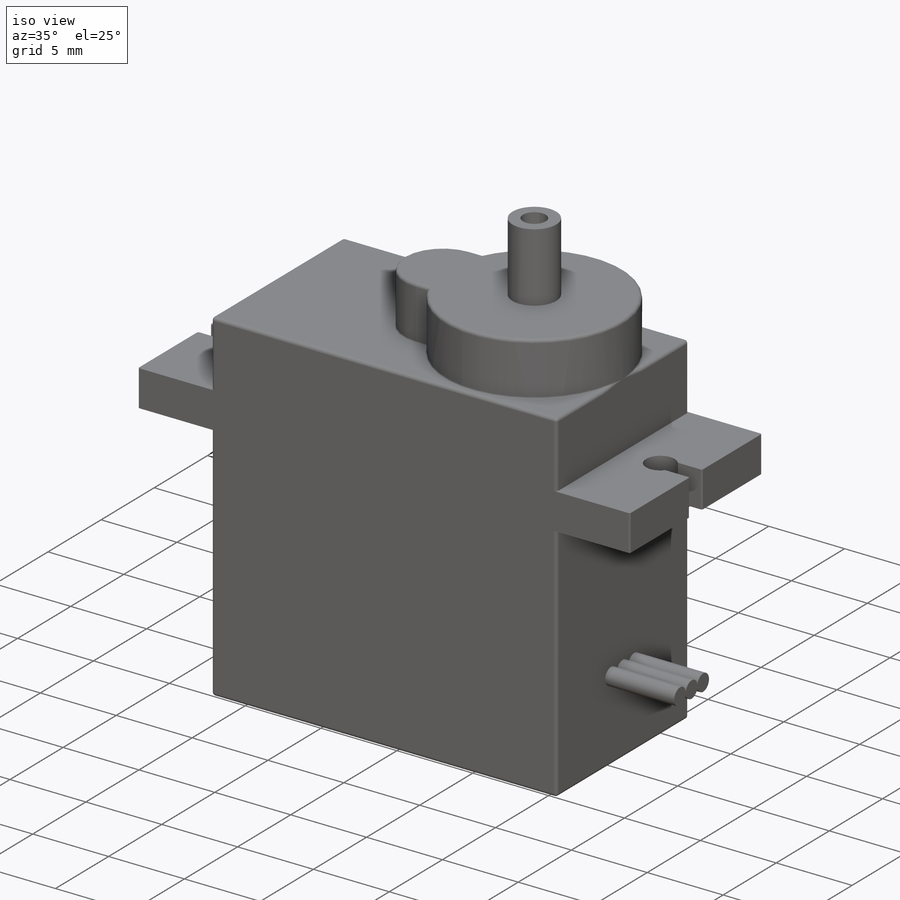
[diagram: iso view]
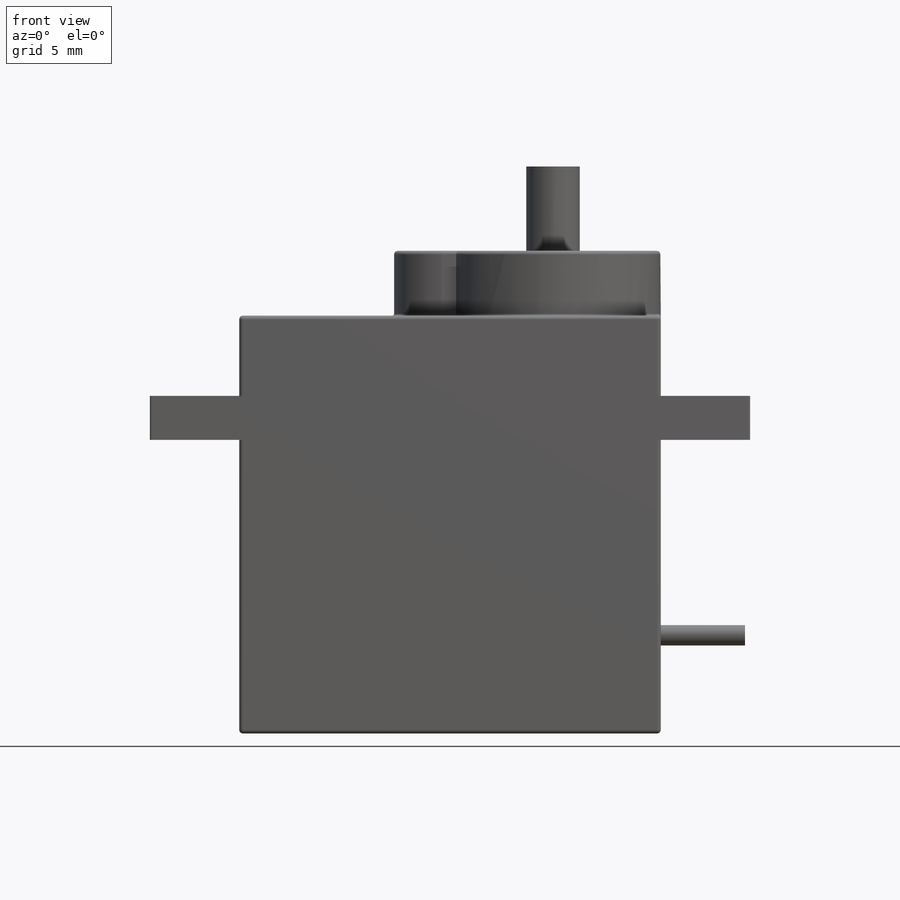
[diagram: front view]
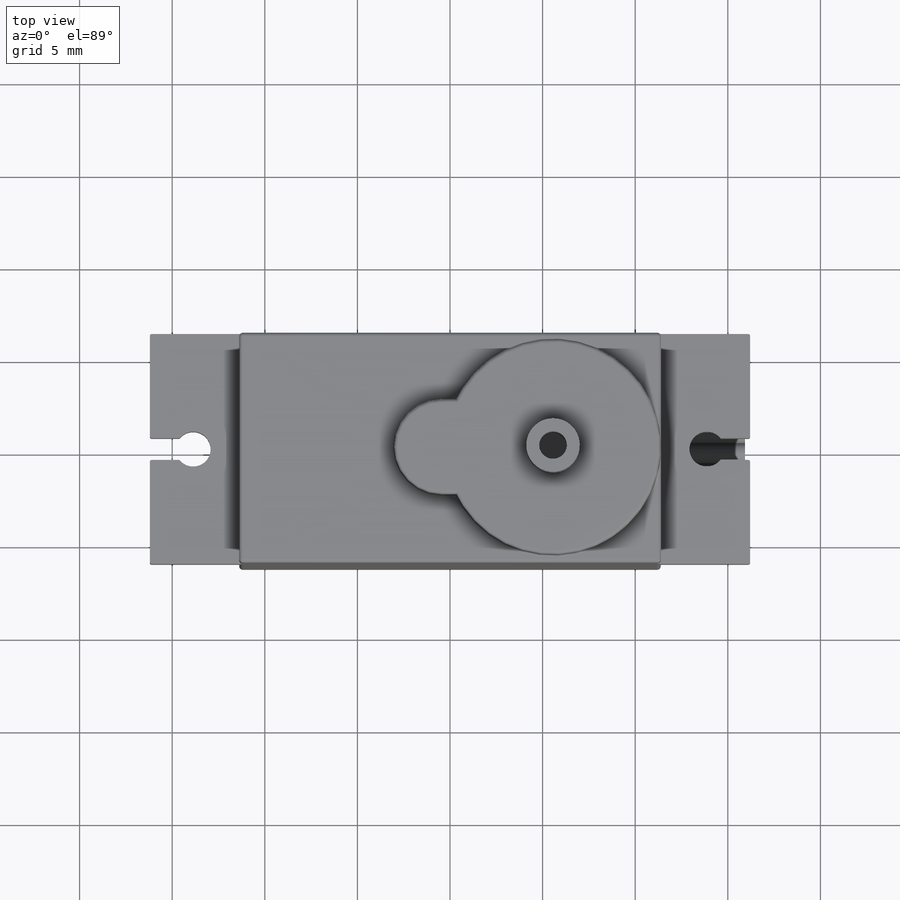
[diagram: top view]
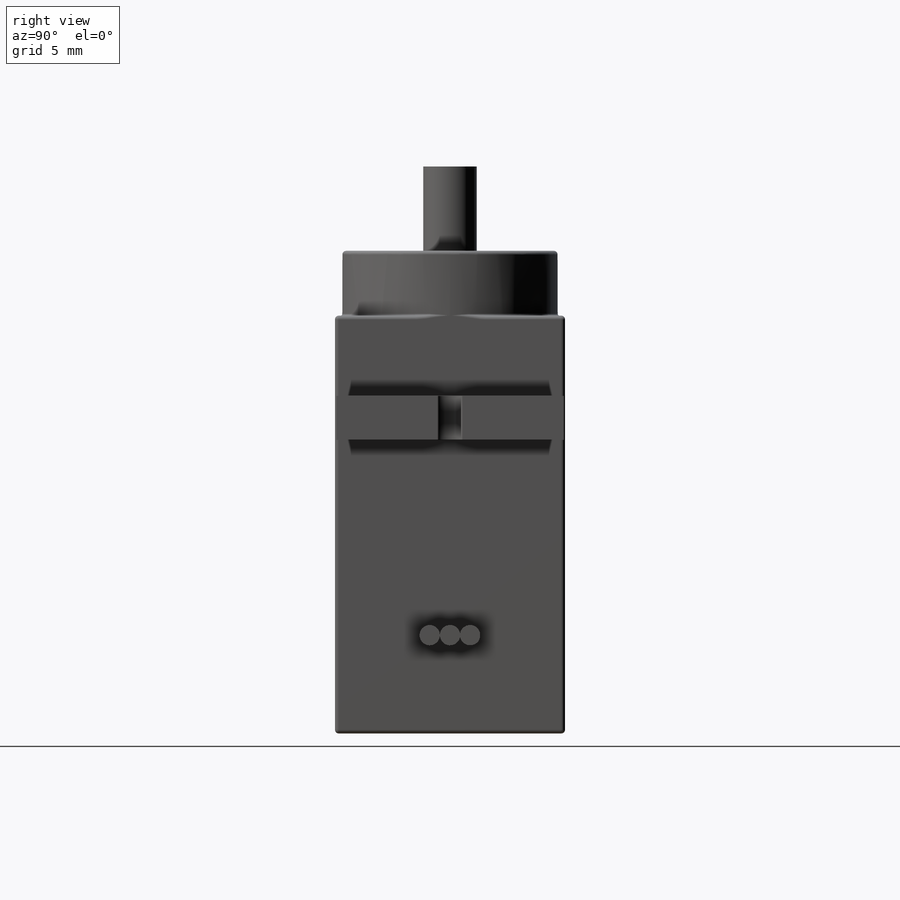
[diagram: right view]
SOLIDWORKS PART (.sldprt)
format: sldprt  version: not decoded by parser v0  size: 519,680 bytes
history: native  units: mm
features: sketch x5, extrude x5, fillet x2, material x1, plane x1 (+16 scaffold rows collapsed)
feature tree (30):
  scaffold x16  (default folders/planes/origin — collapsed)
  material  "Material <not specified>"
  sketch  "Sketch1"  dims[D1=22.76mm D2=12.42mm]
  extrude  "Extrude1"  Depth=22.56mm
  plane  "Plane1"  Offset=4.33mm
  sketch  "Sketch2"  dims[c1.D2=1.89mm c1.D3=1.89mm c1.D4=1.89mm c1.D1=32.41mm c2.D3=2.34mm c2.D4=2.34mm c2.D5=0.585mm c2.D6=0.585mm]
  extrude  "Extrude2"  Depth=2.38mm
  sketch  "Sketch3"  dims[D1=11.64mm D2=5.12mm D3=14.4mm]
  extrude  "Extrude3"  Depth=3.5mm
  fillet  "Fillet1"  Radius=0.1mm
  fillet  "Fillet2"  Radius=0.2mm
  sketch  "Sketch4"  dims[D1=2.89mm D2=1.5mm]
  extrude  "Extrude4"  Depth=4.55mm
  sketch  "Sketch6"  dims[D1=4.75mm D2=1.1mm D3=3.4mm]
  extrude  "Extrude5"  Depth=4.55mm
decode coverage: 12 of 12 modeling features carry decoded parameters
note: suppression state not decoded; provenance and decode notes live in map.json
